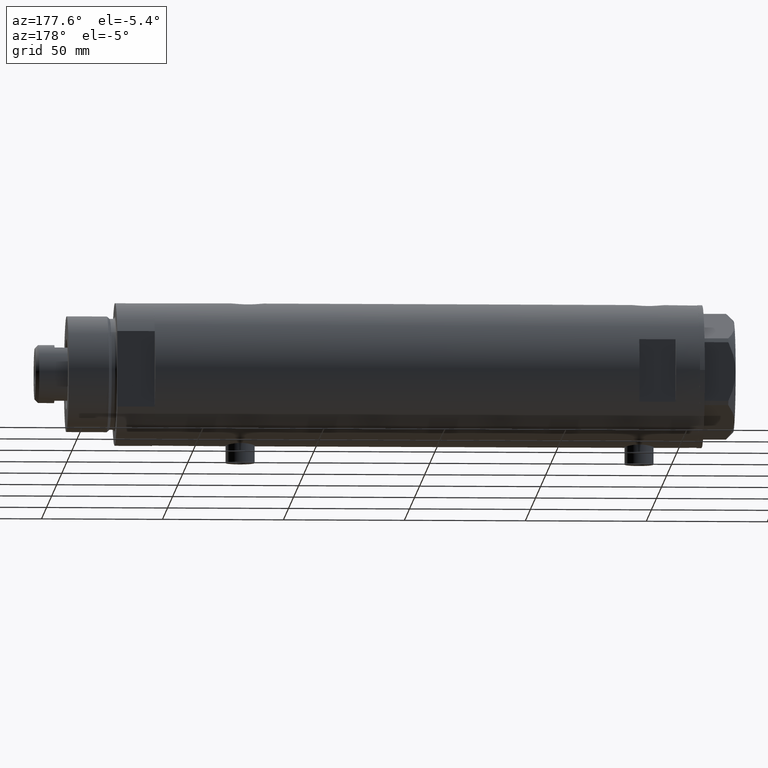
[diagram: clean part render]
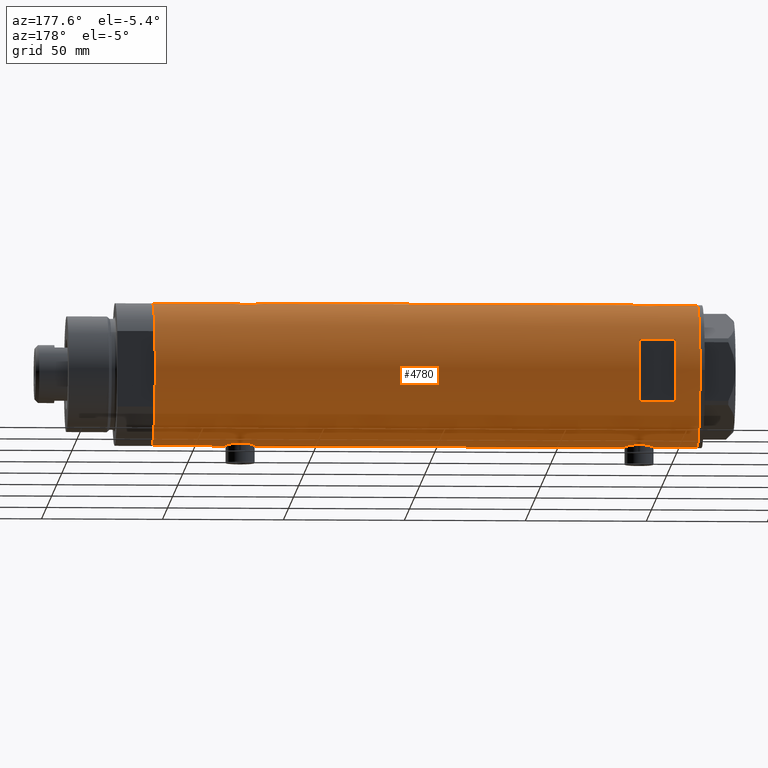
[diagram: same view with one face highlighted and labeled with its STEP entity id]
A machine part, auxiliary view. The second image highlights one B-rep face of the part: STEP entity #4780.
In plain terms, the highlighted cylindrical surface (partial cylindrical patch) has radius 29.5 mm, axis along (-1, -0, 0).
Its self-contained STEP definition (entity closure, byte-faithful):
#15 = CARTESIAN_POINT ( 'NONE',  ( 28.62953349941190595, 7.116010646391501382, 94.51979460923098486 ) ) ;
#36 = CARTESIAN_POINT ( 'NONE',  ( 28.58083212642745607, 7.306745240314161727, -75.10953669436209168 ) ) ;
#40 = CARTESIAN_POINT ( 'NONE',  ( 29.50000000000000355, -2.245054425791785664E-15, 84.59999999999998010 ) ) ;
#61 = CARTESIAN_POINT ( 'NONE',  ( 29.26131531204080360, 3.767377415172557864, -66.89654697428868246 ) ) ;
#63 = CARTESIAN_POINT ( 'NONE',  ( 28.80468126786725236, 6.368639251981151439, 96.06860510682072629 ) ) ;
#84 = CARTESIAN_POINT ( 'NONE',  ( 29.31521205951408504, 3.327945423969218108, 98.83906509227089998 ) ) ;
#108 = CARTESIAN_POINT ( 'NONE',  ( -29.50000000000000711, 0.2042768310961498301, -82.55000000000001137 ) ) ;
#137 = CARTESIAN_POINT ( 'NONE',  ( -29.46640581083894617, 1.421634556901802515, -70.21041108910578998 ) ) ;
#161 = CARTESIAN_POINT ( 'NONE',  ( -28.87327190949137901, 6.049038945481233220, -77.92451728205175243 ) ) ;
#183 = CARTESIAN_POINT ( 'NONE',  ( -29.48289442777306490, 1.024392307325220353, -82.46888222528697554 ) ) ;
#224 = VERTEX_POINT ( 'NONE', #2992 ) ;
#249 = VERTEX_POINT ( 'NONE', #983 ) ;
#252 = DIRECTION ( 'NONE',  ( 1.000000000000000000, 0.000000000000000000, 0.000000000000000000 ) ) ;
#257 = CARTESIAN_POINT ( 'NONE',  ( -29.43341305963176069, 2.016871341298213771, 82.67025331001194388 ) ) ;
#272 = VERTEX_POINT ( 'NONE', #1530 ) ;
#279 = EDGE_CURVE ( 'NONE', #4527, #904, #2363, .T. ) ;
#288 = CARTESIAN_POINT ( 'NONE',  ( -29.25454443288369077, 3.812919888526638879, 93.56897379180907137 ) ) ;
#295 = LINE ( 'NONE', #686, #2123 ) ;
#315 = CARTESIAN_POINT ( 'NONE',  ( -28.99931529802531571, 5.412890550536858747, 85.46870800944782331 ) ) ;
#337 = CARTESIAN_POINT ( 'NONE',  ( 29.50000000000000355, -8.867907290838723877E-21, -65.89999999999999147 ) ) ;
#375 = VERTEX_POINT ( 'NONE', #1835 ) ;
#385 = CARTESIAN_POINT ( 'NONE',  ( 29.08204711695422162, 4.951923910293533737, 86.46183978405699122 ) ) ;
#426 = CARTESIAN_POINT ( 'NONE',  ( 29.08204711695422162, 4.951923910293533737, -79.03816021594298036 ) ) ;
#429 = CARTESIAN_POINT ( 'NONE',  ( 28.53073993742370362, 7.499791908386164607, 91.60538051566963702 ) ) ;
#455 = CARTESIAN_POINT ( 'NONE',  ( 29.47533087885488712, 1.230190383163952461, 99.50252131767059893 ) ) ;
#461 = LINE ( 'NONE', #823, #803 ) ;
#475 = CARTESIAN_POINT ( 'NONE',  ( -29.21113960567727119, 4.128622307952520387, -81.01014533383550997 ) ) ;
#480 = EDGE_CURVE ( 'NONE', #2321, #1320, #461, .T. ) ;
#500 = CARTESIAN_POINT ( 'NONE',  ( -29.45614208737134021, 1.620034288692375757, -70.26011356088388027 ) ) ;
#529 = CARTESIAN_POINT ( 'NONE',  ( -29.37156641804198642, 2.775801885207113795, -70.68527430293366365 ) ) ;
#551 = CARTESIAN_POINT ( 'NONE',  ( -29.37021410611212957, 2.770135525807589261, -81.90634069022829067 ) ) ;
#573 = VECTOR ( 'NONE', #3574, 1000.000000000000000 ) ;
#624 = CARTESIAN_POINT ( 'NONE',  ( -29.45614208737133310, 1.620034288692375535, 94.63988643911606857 ) ) ;
#636 = ORIENTED_EDGE ( 'NONE', *, *, #1365, .F. ) ;
#650 = CARTESIAN_POINT ( 'NONE',  ( -29.21113960567727119, 4.128622307952519499, 83.88985466616443887 ) ) ;
#669 = LINE ( 'NONE', #1711, #3743 ) ;
#686 = CARTESIAN_POINT ( 'NONE',  ( -29.50000000000000355, 3.612708057484692393E-15, -112.5999999999999943 ) ) ;
#700 = EDGE_CURVE ( 'NONE', #224, #272, #2826, .T. ) ;
#703 = CARTESIAN_POINT ( 'NONE',  ( -28.83925158138407596, 6.209208576703536764, 87.77801617131194689 ) ) ;
#713 = ORIENTED_EDGE ( 'NONE', *, *, #1749, .T. ) ;
#723 = CARTESIAN_POINT ( 'NONE',  ( 28.95590528945748687, 5.641861744747101781, -68.45235088071116536 ) ) ;
#732 = AXIS2_PLACEMENT_3D ( 'NONE', #1062, #2818, #2893 ) ;
#739 = AXIS2_PLACEMENT_3D ( 'NONE', #1516, #2978, #4457 ) ;
#743 = EDGE_CURVE ( 'NONE', #2832, #249, #295, .T. ) ;
#745 = CARTESIAN_POINT ( 'NONE',  ( 29.50000000000000355, 0.4977435627019816122, -80.90000000000001990 ) ) ;
#769 = CARTESIAN_POINT ( 'NONE',  ( 28.69800960089390074, 6.832546664705498429, -70.29724969708695426 ) ) ;
#772 = CARTESIAN_POINT ( 'NONE',  ( 28.77473834757382321, 6.507156404236272174, 88.33837315939702250 ) ) ;
#785 = ORIENTED_EDGE ( 'NONE', *, *, #700, .F. ) ;
#788 = CARTESIAN_POINT ( 'NONE',  ( 29.38138226830143651, 2.652609128011945927, -80.41954601959670867 ) ) ;
#790 = CARTESIAN_POINT ( 'NONE',  ( 29.26187100173484623, 3.763222966830672256, 85.59401741939379349 ) ) ;
#799 = ORIENTED_EDGE ( 'NONE', *, *, #2082, .F. ) ;
#800 = DIRECTION ( 'NONE',  ( 0.000000000000000000, 0.000000000000000000, 1.000000000000000000 ) ) ;
#803 = VECTOR ( 'NONE', #4163, 1000.000000000000000 ) ;
#811 = CARTESIAN_POINT ( 'NONE',  ( 29.17471722935868783, 4.373569479501283830, -79.49768842409015690 ) ) ;
#823 = CARTESIAN_POINT ( 'NONE',  ( 12.96148139681573319, 26.49999999999999645, -112.5999999999999943 ) ) ;
#844 = CARTESIAN_POINT ( 'NONE',  ( -28.96085629491409819, 5.616414220648533906, -73.52800360409990788 ) ) ;
#893 = VECTOR ( 'NONE', #800, 1000.000000000000000 ) ;
#904 = VERTEX_POINT ( 'NONE', #4484 ) ;
#915 = CARTESIAN_POINT ( 'NONE',  ( -29.07990598238133373, 4.966177878631055975, -72.48314968353490428 ) ) ;
#934 = CARTESIAN_POINT ( 'NONE',  ( -29.50000000000000355, 3.612708057484692393E-15, -112.5999999999999943 ) ) ;
#983 = CARTESIAN_POINT ( 'NONE',  ( -29.50000000000000355, 3.612706708236066082E-15, -82.54999999999999716 ) ) ;
#986 = CARTESIAN_POINT ( 'NONE',  ( 12.96148139681571898, 26.50000000000000355, 87.60000000000000853 ) ) ;
#989 = CARTESIAN_POINT ( 'NONE',  ( -28.96085629491408753, 5.616414220648533018, 91.37199639590005518 ) ) ;
#1015 = B_SPLINE_CURVE_WITH_KNOTS ( 'NONE', 3,
 ( #4103, #745, #3737, #3715, #1092, #2963, #788, #1108, #2196, #811, #2561, #426, #2989, #1131, #3650, #3307, #1892, #3374, #2602, #3348, #36, #1527, #4082, #2643, #1463, #4486, #4443, #769, #2220, #4400, #2261, #3286, #4468, #723, #1157, #2623, #1913, #61, #1549, #2579, #4790, #3010, #3693, #1176, #4125, #337 ),
 .UNSPECIFIED., .F., .F.,
 ( 4, 2, 2, 2, 2, 2, 2, 2, 2, 2, 2, 2, 2, 2, 2, 2, 2, 2, 2, 2, 2, 2, 4 ),
 ( 2.180446897674398484E-18, 0.001471587963626214742, 0.002207381945439317126, 0.002943175927252419943, 0.004414763890878623843, 0.005150557872691738370, 0.005886351854504852897, 0.007357939818131048991, 0.008829527781757242483, 0.009565321763570359612, 0.01030111574538347674, 0.01177270370900966763, 0.01324429167263586199, 0.01471587963626205808, 0.01545167361807515093, 0.01618746759988825071, 0.01692326158170134529, 0.01765905556351443986, 0.01913064352714060473, 0.02060223149076676613, 0.02207381945439293100, 0.02280961343620601170, 0.02354540741801909587 ),
 .UNSPECIFIED. ) ;
#1016 = CARTESIAN_POINT ( 'NONE',  ( -29.12318177724206691, 4.709191267490246524, 84.47028949758345107 ) ) ;
#1034 = CYLINDRICAL_SURFACE ( 'NONE', #1691, 29.50000000000000355 ) ;
#1038 = CARTESIAN_POINT ( 'NONE',  ( -29.50000000000000355, 3.612706708236066082E-15, 82.34999999999998010 ) ) ;
#1062 = CARTESIAN_POINT ( 'NONE',  ( 0.000000000000000000, 0.000000000000000000, 102.6000000000000085 ) ) ;
#1092 = CARTESIAN_POINT ( 'NONE',  ( 29.43668864566816268, 1.946133027943911076, -80.64730912701001841 ) ) ;
#1094 = CARTESIAN_POINT ( 'NONE',  ( 29.26131531204080360, 3.767377415172557864, 98.60345302571128911 ) ) ;
#1108 = CARTESIAN_POINT ( 'NONE',  ( 29.31463363472445849, 3.333180401682688476, -80.13656844683043801 ) ) ;
#1111 = CARTESIAN_POINT ( 'NONE',  ( 28.63233008736633778, 7.102474189478622968, 89.67814868761111313 ) ) ;
#1118 = ORIENTED_EDGE ( 'NONE', *, *, #3189, .F. ) ;
#1131 = CARTESIAN_POINT ( 'NONE',  ( 28.95615051861771860, 5.649234316505064690, -78.35715418746728744 ) ) ;
#1132 = CIRCLE ( 'NONE', #3752, 29.50000000000000355 ) ;
#1134 = CARTESIAN_POINT ( 'NONE',  ( 28.95615051861771860, 5.649234316505064690, 87.14284581253269835 ) ) ;
#1157 = CARTESIAN_POINT ( 'NONE',  ( 28.98787507734748914, 5.475789924529805397, -68.26910956623378013 ) ) ;
#1160 = CARTESIAN_POINT ( 'NONE',  ( 29.43668864566816268, 1.946133027943911076, 84.85269087298998159 ) ) ;
#1176 = CARTESIAN_POINT ( 'NONE',  ( 29.49693976195335665, 0.4910732786937767047, -65.91200905704373270 ) ) ;
#1178 = CARTESIAN_POINT ( 'NONE',  ( 28.89369475765812112, 5.952264974793434860, 96.66950516186247455 ) ) ;
#1256 = CARTESIAN_POINT ( 'NONE',  ( -29.33500454540941149, 3.134363790739238542, -70.87737865536321635 ) ) ;
#1258 = EDGE_CURVE ( 'NONE', #2895, #3053, #1406, .T. ) ;
#1260 = DIRECTION ( 'NONE',  ( 0.000000000000000000, 1.000000000000000000, -4.704334850106595203E-15 ) ) ;
#1280 = CARTESIAN_POINT ( 'NONE',  ( -29.41782704931130255, 2.208494778271264725, -70.44961702072824039 ) ) ;
#1307 = CARTESIAN_POINT ( 'NONE',  ( -28.94521404191310765, 5.694822755760260868, -78.88333046401341164 ) ) ;
#1320 = VERTEX_POINT ( 'NONE', #986 ) ;
#1346 = ORIENTED_EDGE ( 'NONE', *, *, #2216, .F. ) ;
#1365 = EDGE_CURVE ( 'NONE', #375, #2321, #2812, .T. ) ;
#1389 = CARTESIAN_POINT ( 'NONE',  ( -29.38727827406289705, 2.583363936682820494, 82.90521973871331340 ) ) ;
#1406 = LINE ( 'NONE', #2868, #3121 ) ;
#1412 = CARTESIAN_POINT ( 'NONE',  ( -28.87327190949138256, 6.049038945481234109, 86.97548271794826746 ) ) ;
#1461 = CARTESIAN_POINT ( 'NONE',  ( -29.07990598238133018, 4.966177878631055975, 92.41685031646508719 ) ) ;
#1463 = CARTESIAN_POINT ( 'NONE',  ( 28.54372006395177053, 7.450900983269902689, -72.41234264364082662 ) ) ;
#1465 = CARTESIAN_POINT ( 'NONE',  ( 28.77649569280672992, 6.494415104660927973, 95.85934988816624980 ) ) ;
#1486 = CARTESIAN_POINT ( 'NONE',  ( 29.45150476095192360, 1.707859807438206312, 84.79292881343934596 ) ) ;
#1504 = CARTESIAN_POINT ( 'NONE',  ( 28.53063088452981688, 7.500206755597528030, 92.58828856904804638 ) ) ;
#1516 = CARTESIAN_POINT ( 'NONE',  ( 0.000000000000000000, 0.000000000000000000, 112.5999999999999943 ) ) ;
#1519 = LINE ( 'NONE', #3340, #1531 ) ;
#1525 = CARTESIAN_POINT ( 'NONE',  ( -29.50000000000000355, -5.649958391113855330E-16, -70.04999999999998295 ) ) ;
#1527 = CARTESIAN_POINT ( 'NONE',  ( 28.54350045195476326, 7.451747857568912004, -74.38266002875501215 ) ) ;
#1530 = CARTESIAN_POINT ( 'NONE',  ( 29.50000000000000355, -2.245054425791785664E-15, -80.90000000000000568 ) ) ;
#1531 = VECTOR ( 'NONE', #3730, 1000.000000000000000 ) ;
#1543 = EDGE_LOOP ( 'NONE', ( #4574, #2576, #1346, #713, #3369, #3387, #3683, #3948, #2975, #799, #3579, #785 ) ) ;
#1549 = CARTESIAN_POINT ( 'NONE',  ( 29.31521205951408504, 3.327945423969218108, -66.66093490772910002 ) ) ;
#1551 = CARTESIAN_POINT ( 'NONE',  ( 29.50000000000000355, 0.4977435627019816122, 84.59999999999999432 ) ) ;
#1571 = CARTESIAN_POINT ( 'NONE',  ( 29.43913092143246146, 1.954882548385547203, 99.35749234733353319 ) ) ;
#1619 = CARTESIAN_POINT ( 'NONE',  ( 0.000000000000000000, 0.000000000000000000, -112.5999999999999943 ) ) ;
#1622 = CARTESIAN_POINT ( 'NONE',  ( -29.25454443288369433, 3.812919888526639323, -71.33102620819090589 ) ) ;
#1645 = CARTESIAN_POINT ( 'NONE',  ( -28.83035796536222506, 6.249836767212676669, -75.88856505377279404 ) ) ;
#1655 = CARTESIAN_POINT ( 'NONE',  ( 29.50000000000000355, 0.000000000000000000, -112.5999999999999943 ) ) ;
#1667 = CARTESIAN_POINT ( 'NONE',  ( -29.48933702067640539, 0.8192029158410167877, -82.49950722266696346 ) ) ;
#1691 = AXIS2_PLACEMENT_3D ( 'NONE', #4323, #3156, #252 ) ;
#1711 = CARTESIAN_POINT ( 'NONE',  ( -29.50000000000000355, 3.612708057484692393E-15, -112.5999999999999943 ) ) ;
#1718 = CARTESIAN_POINT ( 'NONE',  ( -29.50000000000000355, -5.649958391113855330E-16, 94.84999999999999432 ) ) ;
#1749 = EDGE_CURVE ( 'NONE', #2609, #2768, #669, .T. ) ;
#1775 = CARTESIAN_POINT ( 'NONE',  ( -29.01875661852155019, 5.308007315944001547, 85.29411629999104605 ) ) ;
#1781 = DIRECTION ( 'NONE',  ( 0.000000000000000000, 0.000000000000000000, 1.000000000000000000 ) ) ;
#1830 = CARTESIAN_POINT ( 'NONE',  ( 28.98787507734748914, 5.475789924529805397, 97.23089043376624829 ) ) ;
#1831 = CARTESIAN_POINT ( 'NONE',  ( -29.50000000000000355, 3.612708057484692393E-15, 112.5999999999999943 ) ) ;
#1835 = CARTESIAN_POINT ( 'NONE',  ( -12.96148139681573319, 26.49999999999998934, 102.6000000000000085 ) ) ;
#1872 = CARTESIAN_POINT ( 'NONE',  ( 29.17471722935868783, 4.373569479501283830, 86.00231157590984310 ) ) ;
#1892 = CARTESIAN_POINT ( 'NONE',  ( 28.72066933684368095, 6.738715173607861431, -76.72836955953555105 ) ) ;
#1895 = CARTESIAN_POINT ( 'NONE',  ( 12.96148139681573319, 26.49999999999998934, 102.6000000000000085 ) ) ;
#1910 = AXIS2_PLACEMENT_3D ( 'NONE', #1619, #3056, #3490 ) ;
#1913 = CARTESIAN_POINT ( 'NONE',  ( 29.14546206473281487, 4.578181670952607085, -67.43943908396705922 ) ) ;
#1917 = CARTESIAN_POINT ( 'NONE',  ( 29.05056090758568388, 5.132790299589563787, 86.62608273347915144 ) ) ;
#1939 = CARTESIAN_POINT ( 'NONE',  ( 29.40387556522357571, 2.422597899785628339, 99.21486039769831677 ) ) ;
#1958 = CARTESIAN_POINT ( 'NONE',  ( -28.99931529802531216, 5.412890550536858747, -79.43129199055219658 ) ) ;
#1971 = EDGE_CURVE ( 'NONE', #4788, #3053, #4216, .T. ) ;
#2009 = CARTESIAN_POINT ( 'NONE',  ( -28.90008889585329044, 5.919338933253946777, -74.28359792941951412 ) ) ;
#2031 = CARTESIAN_POINT ( 'NONE',  ( -28.83925158138407596, 6.209208576703537652, -77.12198382868805879 ) ) ;
#2049 = CARTESIAN_POINT ( 'NONE',  ( -29.50000000000000355, 3.612706708236066082E-15, -82.54999999999999716 ) ) ;
#2082 = EDGE_CURVE ( 'NONE', #3920, #4527, #3386, .T. ) ;
#2098 = CARTESIAN_POINT ( 'NONE',  ( -28.83035796536221440, 6.249836767212674005, 89.01143494622721164 ) ) ;
#2103 = B_SPLINE_CURVE_WITH_KNOTS ( 'NONE', 3,
 ( #1718, #3181, #4658, #4180, #624, #4298, #4327, #2852, #4738, #288, #2128, #2819, #1461, #4032, #989, #3598, #3568, #4764, #2460, #3935, #2098, #3211, #703, #1412, #4399, #3628, #2873, #315, #1775, #3959, #1016, #650, #2537, #4690, #3241, #2924, #1389, #257, #2194, #2483, #4717, #4374, #4348, #1038 ),
 .UNSPECIFIED., .F., .F.,
 ( 4, 2, 2, 2, 2, 2, 2, 2, 2, 2, 2, 2, 2, 2, 2, 2, 2, 2, 2, 2, 2, 4 ),
 ( 5.488367186017542912E-19, 0.001224749128302359208, 0.001837123692453538487, 0.002449498256604717549, 0.003674247384907060928, 0.004898996513209404741, 0.006123745641511747252, 0.007348494769814091498, 0.007960869333965264055, 0.008573243898116434877, 0.009797993026418740092, 0.01102274215472104531, 0.01224749128302334705, 0.01285986584717448145, 0.01347224041132561584, 0.01469698953962791585, 0.01592173866793021586, 0.01653411323208136413, 0.01714648779623251240, 0.01837123692453481241, 0.01898361148868596762, 0.01959598605283711936 ),
 .UNSPECIFIED. ) ;
#2123 = VECTOR ( 'NONE', #1781, 1000.000000000000000 ) ;
#2128 = CARTESIAN_POINT ( 'NONE',  ( -29.21045586191521082, 4.133246019522336390, 93.30573901566481254 ) ) ;
#2139 = CIRCLE ( 'NONE', #1910, 29.50000000000000355 ) ;
#2194 = CARTESIAN_POINT ( 'NONE',  ( -29.45783481716065211, 1.627188261681546511, 82.55163589091053211 ) ) ;
#2196 = CARTESIAN_POINT ( 'NONE',  ( 29.26187100173484623, 3.763222966830672256, -79.90598258060620651 ) ) ;
#2199 = CARTESIAN_POINT ( 'NONE',  ( 29.48742029994219749, 0.9867701249543477937, 84.64905492505776863 ) ) ;
#2216 = EDGE_CURVE ( 'NONE', #2609, #249, #2617, .T. ) ;
#2220 = CARTESIAN_POINT ( 'NONE',  ( 28.72322018454530479, 6.726124749058844721, -70.07293147149003687 ) ) ;
#2224 = CARTESIAN_POINT ( 'NONE',  ( 28.59637095282950980, 7.245897747848937698, 90.14872625722388477 ) ) ;
#2245 = CARTESIAN_POINT ( 'NONE',  ( 28.54372006395177053, 7.450900983269902689, 93.08765735635915917 ) ) ;
#2261 = CARTESIAN_POINT ( 'NONE',  ( 28.80468126786725236, 6.368639251981151439, -69.43139489317928792 ) ) ;
#2263 = CARTESIAN_POINT ( 'NONE',  ( 29.14416130131008131, 4.572185141625607407, 86.14974588234440489 ) ) ;
#2289 = VECTOR ( 'NONE', #4355, 1000.000000000000000 ) ;
#2291 = CARTESIAN_POINT ( 'NONE',  ( 28.54350045195476326, 7.451747857568912004, 91.11733997124495943 ) ) ;
#2321 = VERTEX_POINT ( 'NONE', #1895 ) ;
#2362 = CARTESIAN_POINT ( 'NONE',  ( -29.25435602127559065, 3.814249285079244434, -81.26783729533993039 ) ) ;
#2363 = B_SPLINE_CURVE_WITH_KNOTS ( 'NONE', 3,
 ( #40, #1551, #2199, #1486, #1160, #2626, #2945, #4105, #790, #1872, #2263, #385, #1917, #1134, #3328, #772, #2582, #4420, #1111, #2224, #3740, #2291, #429, #1504, #2245, #4489, #15, #4446, #3376, #1465, #63, #3013, #1178, #2645, #1830, #3288, #4402, #1094, #84, #1939, #1571, #455, #3396, #3766, #4310, #3970 ),
 .UNSPECIFIED., .F., .F.,
 ( 4, 2, 2, 2, 2, 2, 2, 2, 2, 2, 2, 2, 2, 2, 2, 2, 2, 2, 2, 2, 2, 2, 4 ),
 ( 2.180446897674398484E-18, 0.001471587963626214742, 0.002207381945439317126, 0.002943175927252419943, 0.004414763890878623843, 0.005150557872691738370, 0.005886351854504852897, 0.007357939818131048991, 0.008829527781757242483, 0.009565321763570359612, 0.01030111574538347674, 0.01177270370900966763, 0.01324429167263586199, 0.01471587963626205808, 0.01545167361807515093, 0.01618746759988825071, 0.01692326158170134529, 0.01765905556351443986, 0.01913064352714060473, 0.02060223149076676613, 0.02207381945439293100, 0.02280961343620601170, 0.02354540741801909587 ),
 .UNSPECIFIED. ) ;
#2365 = DIRECTION ( 'NONE',  ( 0.000000000000000000, 4.625929269271487689E-15, 1.000000000000000000 ) ) ;
#2388 = CARTESIAN_POINT ( 'NONE',  ( -29.07940225710134285, 4.969011347753393260, -80.11269734470184289 ) ) ;
#2397 = CARTESIAN_POINT ( 'NONE',  ( 29.50000000000000355, -8.867907290838723877E-21, -65.89999999999999147 ) ) ;
#2407 = FACE_BOUND ( 'NONE', #3456, .T. ) ;
#2427 = CARTESIAN_POINT ( 'NONE',  ( -29.50000000000000355, -5.649958391113855330E-16, 94.84999999999999432 ) ) ;
#2460 = CARTESIAN_POINT ( 'NONE',  ( -28.86473101544358144, 6.089252369705490331, 90.02332949166030573 ) ) ;
#2483 = CARTESIAN_POINT ( 'NONE',  ( -29.48289442777306846, 1.024392307325220797, 82.43111777471298751 ) ) ;
#2502 = DIRECTION ( 'NONE',  ( 0.000000000000000000, 0.000000000000000000, 1.000000000000000000 ) ) ;
#2506 = ORIENTED_EDGE ( 'NONE', *, *, #480, .F. ) ;
#2537 = CARTESIAN_POINT ( 'NONE',  ( -29.25435602127558354, 3.814249285079243101, 83.63216270466004687 ) ) ;
#2557 = EDGE_CURVE ( 'NONE', #2895, #2768, #2103, .T. ) ;
#2561 = CARTESIAN_POINT ( 'NONE',  ( 29.14416130131008131, 4.572185141625607407, -79.35025411765556669 ) ) ;
#2576 = ORIENTED_EDGE ( 'NONE', *, *, #743, .T. ) ;
#2579 = CARTESIAN_POINT ( 'NONE',  ( 29.40387556522357571, 2.422597899785628339, -66.28513960230164059 ) ) ;
#2582 = CARTESIAN_POINT ( 'NONE',  ( 28.72066933684368095, 6.738715173607861431, 88.77163044046442053 ) ) ;
#2602 = CARTESIAN_POINT ( 'NONE',  ( 28.63233008736633778, 7.102474189478622968, -75.82185131238890108 ) ) ;
#2609 = VERTEX_POINT ( 'NONE', #1525 ) ;
#2617 = B_SPLINE_CURVE_WITH_KNOTS ( 'NONE', 3,
 ( #3472, #4227, #3447, #137, #500, #3838, #1280, #529, #1256, #1622, #3883, #3789, #915, #3087, #844, #4634, #2009, #2716, #4562, #4178, #1645, #2773, #2031, #161, #2670, #1307, #4200, #1958, #3107, #2388, #3862, #475, #2362, #4156, #4584, #551, #3418, #3517, #3495, #183, #1667, #3134, #108, #2049 ),
 .UNSPECIFIED., .F., .F.,
 ( 4, 2, 2, 2, 2, 2, 2, 2, 2, 2, 2, 2, 2, 2, 2, 2, 2, 2, 2, 2, 2, 4 ),
 ( 5.488367186017542912E-19, 0.001224749128302296758, 0.001837123692453444595, 0.002449498256604592649, 0.003674247384906904803, 0.004898996513209217391, 0.006123745641511529544, 0.007348494769813842566, 0.007960869333964998643, 0.008573243898116155587, 0.009797993026418507639, 0.01102274215472085969, 0.01224749128302321348, 0.01285986584717438777, 0.01347224041132556553, 0.01469698953962788462, 0.01592173866793020545, 0.01653411323208136413, 0.01714648779623252281, 0.01837123692453482629, 0.01898361148868597109, 0.01959598605283711936 ),
 .UNSPECIFIED. ) ;
#2623 = CARTESIAN_POINT ( 'NONE',  ( 29.08308069045667565, 4.954707331652133284, -67.74826371623228738 ) ) ;
#2626 = CARTESIAN_POINT ( 'NONE',  ( 29.40165444879503909, 2.418426732012825653, 84.99632943565210041 ) ) ;
#2643 = CARTESIAN_POINT ( 'NONE',  ( 28.53063088452981688, 7.500206755597528030, -72.91171143095191098 ) ) ;
#2645 = CARTESIAN_POINT ( 'NONE',  ( 28.95590528945748687, 5.641861744747101781, 97.04764911928884885 ) ) ;
#2670 = CARTESIAN_POINT ( 'NONE',  ( -28.89816269917384872, 5.930588606439751942, -78.31470315542169658 ) ) ;
#2716 = CARTESIAN_POINT ( 'NONE',  ( -28.87539346372185634, 6.038655803256916421, -74.67547335916927409 ) ) ;
#2768 = VERTEX_POINT ( 'NONE', #3469 ) ;
#2773 = CARTESIAN_POINT ( 'NONE',  ( -28.83028740688047264, 6.250162243045982891, -76.70646065908368882 ) ) ;
#2785 = EDGE_CURVE ( 'NONE', #224, #2832, #2139, .T. ) ;
#2812 = CIRCLE ( 'NONE', #732, 29.50000000000000355 ) ;
#2818 = DIRECTION ( 'NONE',  ( -0.000000000000000000, -0.000000000000000000, -1.000000000000000000 ) ) ;
#2819 = CARTESIAN_POINT ( 'NONE',  ( -29.12335997091253148, 4.707903814166463086, 92.73078007378799725 ) ) ;
#2826 = LINE ( 'NONE', #4079, #573 ) ;
#2832 = VERTEX_POINT ( 'NONE', #934 ) ;
#2852 = CARTESIAN_POINT ( 'NONE',  ( -29.37156641804199353, 2.775801885207114239, 94.21472569706631361 ) ) ;
#2868 = CARTESIAN_POINT ( 'NONE',  ( -29.50000000000000355, 3.612708057484692393E-15, -112.5999999999999943 ) ) ;
#2873 = CARTESIAN_POINT ( 'NONE',  ( -28.96258065965880846, 5.606121065329690012, 85.82948014931236003 ) ) ;
#2881 = CARTESIAN_POINT ( 'NONE',  ( 29.50000000000000355, 0.000000000000000000, -112.5999999999999943 ) ) ;
#2893 = DIRECTION ( 'NONE',  ( 1.000000000000000000, -1.776356839400250267E-15, 0.000000000000000000 ) ) ;
#2895 = VERTEX_POINT ( 'NONE', #2427 ) ;
#2924 = CARTESIAN_POINT ( 'NONE',  ( -29.37021410611213668, 2.770135525807589261, 82.99365930977168659 ) ) ;
#2945 = CARTESIAN_POINT ( 'NONE',  ( 29.38138226830143651, 2.652609128011945927, 85.08045398040326290 ) ) ;
#2963 = CARTESIAN_POINT ( 'NONE',  ( 29.40165444879503909, 2.418426732012825653, -80.50367056434788537 ) ) ;
#2975 = ORIENTED_EDGE ( 'NONE', *, *, #279, .F. ) ;
#2978 = DIRECTION ( 'NONE',  ( 0.000000000000000000, 0.000000000000000000, 1.000000000000000000 ) ) ;
#2989 = CARTESIAN_POINT ( 'NONE',  ( 29.05056090758568388, 5.132790299589563787, -78.87391726652083435 ) ) ;
#2992 = CARTESIAN_POINT ( 'NONE',  ( 29.50000000000000355, 0.000000000000000000, -112.5999999999999943 ) ) ;
#3010 = CARTESIAN_POINT ( 'NONE',  ( 29.47533087885488712, 1.230190383163952461, -65.99747868232940107 ) ) ;
#3013 = CARTESIAN_POINT ( 'NONE',  ( 28.86328010881651807, 6.097564286278117862, 96.47368290922692324 ) ) ;
#3053 = VERTEX_POINT ( 'NONE', #1831 ) ;
#3056 = DIRECTION ( 'NONE',  ( 0.000000000000000000, 0.000000000000000000, 1.000000000000000000 ) ) ;
#3087 = CARTESIAN_POINT ( 'NONE',  ( -28.99817753551064925, 5.423057650933435170, -73.16603848537405952 ) ) ;
#3107 = CARTESIAN_POINT ( 'NONE',  ( -29.01875661852156085, 5.308007315944005100, -79.60588370000893121 ) ) ;
#3108 = EDGE_CURVE ( 'NONE', #904, #4788, #4038, .T. ) ;
#3121 = VECTOR ( 'NONE', #2502, 1000.000000000000000 ) ;
#3134 = CARTESIAN_POINT ( 'NONE',  ( -29.49787850362430675, 0.4089683628077636635, -82.54001026437013877 ) ) ;
#3156 = DIRECTION ( 'NONE',  ( 0.000000000000000000, 0.000000000000000000, 1.000000000000000000 ) ) ;
#3181 = CARTESIAN_POINT ( 'NONE',  ( -29.50000000000000711, 0.4142160563134686946, 94.85000000000000853 ) ) ;
#3189 = EDGE_CURVE ( 'NONE', #1320, #3282, #1132, .T. ) ;
#3211 = CARTESIAN_POINT ( 'NONE',  ( -28.83028740688046554, 6.250162243045982891, 88.19353934091623159 ) ) ;
#3241 = CARTESIAN_POINT ( 'NONE',  ( -29.33379699751450076, 3.132328395749502725, 83.18767835513884279 ) ) ;
#3282 = VERTEX_POINT ( 'NONE', #3629 ) ;
#3286 = CARTESIAN_POINT ( 'NONE',  ( 28.86328010881651807, 6.097564286278117862, -69.02631709077299149 ) ) ;
#3288 = CARTESIAN_POINT ( 'NONE',  ( 29.08308069045667565, 4.954707331652133284, 97.75173628376772683 ) ) ;
#3307 = CARTESIAN_POINT ( 'NONE',  ( 28.77473834757382321, 6.507156404236272174, -77.16162684060296328 ) ) ;
#3328 = CARTESIAN_POINT ( 'NONE',  ( 28.89325003604223951, 5.958922200807248437, 87.51915213504483404 ) ) ;
#3340 = CARTESIAN_POINT ( 'NONE',  ( -12.96148139681573319, 26.49999999999999645, -112.5999999999999943 ) ) ;
#3348 = CARTESIAN_POINT ( 'NONE',  ( 28.59637095282950980, 7.245897747848937698, -75.35127374277611523 ) ) ;
#3369 = ORIENTED_EDGE ( 'NONE', *, *, #2557, .F. ) ;
#3374 = CARTESIAN_POINT ( 'NONE',  ( 28.65280969280607337, 7.019670864411701849, -76.05213168683113167 ) ) ;
#3376 = CARTESIAN_POINT ( 'NONE',  ( 28.72322018454530479, 6.726124749058844721, 95.42706852851001997 ) ) ;
#3386 = LINE ( 'NONE', #1655, #893 ) ;
#3387 = ORIENTED_EDGE ( 'NONE', *, *, #1258, .T. ) ;
#3396 = CARTESIAN_POINT ( 'NONE',  ( 29.48463566286631377, 0.9832945201638373378, 99.53937451762296007 ) ) ;
#3418 = CARTESIAN_POINT ( 'NONE',  ( -29.38727827406289705, 2.583363936682820494, -81.99478026128664965 ) ) ;
#3447 = CARTESIAN_POINT ( 'NONE',  ( -29.49128627113591605, 0.8212788586050359108, -70.09076875091126624 ) ) ;
#3456 = EDGE_LOOP ( 'NONE', ( #4309, #1118, #2506, #636 ) ) ;
#3462 = EDGE_CURVE ( 'NONE', #3282, #375, #1519, .T. ) ;
#3469 = CARTESIAN_POINT ( 'NONE',  ( -29.50000000000000355, 3.612706708236066082E-15, 82.34999999999998010 ) ) ;
#3472 = CARTESIAN_POINT ( 'NONE',  ( -29.50000000000000355, -5.649958391113855330E-16, -70.04999999999998295 ) ) ;
#3490 = DIRECTION ( 'NONE',  ( 1.000000000000000000, 0.000000000000000000, 0.000000000000000000 ) ) ;
#3495 = CARTESIAN_POINT ( 'NONE',  ( -29.45783481716065921, 1.627188261681547399, -82.34836410908947357 ) ) ;
#3517 = CARTESIAN_POINT ( 'NONE',  ( -29.43341305963176424, 2.016871341298210663, -82.22974668998807601 ) ) ;
#3568 = CARTESIAN_POINT ( 'NONE',  ( -28.90008889585329399, 5.919338933253945889, 90.61640207058046315 ) ) ;
#3574 = DIRECTION ( 'NONE',  ( 0.000000000000000000, 0.000000000000000000, 1.000000000000000000 ) ) ;
#3579 = ORIENTED_EDGE ( 'NONE', *, *, #4521, .F. ) ;
#3598 = CARTESIAN_POINT ( 'NONE',  ( -28.91416466586725065, 5.850419487802252405, 90.80827647633628885 ) ) ;
#3628 = CARTESIAN_POINT ( 'NONE',  ( -28.94521404191312541, 5.694822755760260868, 86.01666953598655141 ) ) ;
#3629 = CARTESIAN_POINT ( 'NONE',  ( -12.96148139681574030, 26.50000000000000355, 87.60000000000000853 ) ) ;
#3650 = CARTESIAN_POINT ( 'NONE',  ( 28.89325003604223951, 5.958922200807248437, -77.98084786495516596 ) ) ;
#3683 = ORIENTED_EDGE ( 'NONE', *, *, #1971, .F. ) ;
#3693 = CARTESIAN_POINT ( 'NONE',  ( 29.48463566286631377, 0.9832945201638373378, -65.96062548237703993 ) ) ;
#3715 = CARTESIAN_POINT ( 'NONE',  ( 29.45150476095192360, 1.707859807438206312, -80.70707118656062562 ) ) ;
#3730 = DIRECTION ( 'NONE',  ( 0.000000000000000000, 0.000000000000000000, 1.000000000000000000 ) ) ;
#3737 = CARTESIAN_POINT ( 'NONE',  ( 29.48742029994219749, 0.9867701249543477937, -80.85094507494221716 ) ) ;
#3740 = CARTESIAN_POINT ( 'NONE',  ( 28.58083212642745607, 7.306745240314161727, 90.39046330563792253 ) ) ;
#3743 = VECTOR ( 'NONE', #3927, 1000.000000000000000 ) ;
#3752 = AXIS2_PLACEMENT_3D ( 'NONE', #4542, #2365, #1260 ) ;
#3766 = CARTESIAN_POINT ( 'NONE',  ( 29.49693976195335665, 0.4910732786937767047, 99.58799094295619625 ) ) ;
#3789 = CARTESIAN_POINT ( 'NONE',  ( -29.12335997091253503, 4.707903814166464862, -72.16921992621200843 ) ) ;
#3838 = CARTESIAN_POINT ( 'NONE',  ( -29.43187585711095977, 2.013330896687708815, -70.37959139970894284 ) ) ;
#3862 = CARTESIAN_POINT ( 'NONE',  ( -29.12318177724206336, 4.709191267490246524, -80.42971050241654041 ) ) ;
#3883 = CARTESIAN_POINT ( 'NONE',  ( -29.21045586191521082, 4.133246019522336390, -71.59426098433517893 ) ) ;
#3920 = VERTEX_POINT ( 'NONE', #2397 ) ;
#3927 = DIRECTION ( 'NONE',  ( 0.000000000000000000, 0.000000000000000000, 1.000000000000000000 ) ) ;
#3935 = CARTESIAN_POINT ( 'NONE',  ( -28.83909818927743629, 6.209925900742494065, 89.41778075451991015 ) ) ;
#3948 = ORIENTED_EDGE ( 'NONE', *, *, #3108, .F. ) ;
#3956 = FACE_OUTER_BOUND ( 'NONE', #1543, .T. ) ;
#3959 = CARTESIAN_POINT ( 'NONE',  ( -29.07940225710134285, 4.969011347753391483, 84.78730265529817700 ) ) ;
#3970 = CARTESIAN_POINT ( 'NONE',  ( 29.50000000000000355, -8.867907290838723877E-21, 99.59999999999999432 ) ) ;
#4032 = CARTESIAN_POINT ( 'NONE',  ( -28.99817753551064570, 5.423057650933436058, 91.73396151462590353 ) ) ;
#4033 = CARTESIAN_POINT ( 'NONE',  ( 29.50000000000000355, -2.245054425791785664E-15, 84.59999999999998010 ) ) ;
#4038 = LINE ( 'NONE', #2881, #2289 ) ;
#4079 = CARTESIAN_POINT ( 'NONE',  ( 29.50000000000000355, 0.000000000000000000, -112.5999999999999943 ) ) ;
#4082 = CARTESIAN_POINT ( 'NONE',  ( 28.53073993742370362, 7.499791908386164607, -73.89461948433039140 ) ) ;
#4103 = CARTESIAN_POINT ( 'NONE',  ( 29.50000000000000355, -2.245054425791785664E-15, -80.90000000000000568 ) ) ;
#4105 = CARTESIAN_POINT ( 'NONE',  ( 29.31463363472445849, 3.333180401682688476, 85.36343155316953357 ) ) ;
#4125 = CARTESIAN_POINT ( 'NONE',  ( 29.50000000000000355, 0.2453482418156857914, -65.89999999999999147 ) ) ;
#4156 = CARTESIAN_POINT ( 'NONE',  ( -29.31451746246149881, 3.307268797680005257, -81.60714841985003432 ) ) ;
#4163 = DIRECTION ( 'NONE',  ( -0.000000000000000000, -0.000000000000000000, -1.000000000000000000 ) ) ;
#4178 = CARTESIAN_POINT ( 'NONE',  ( -28.83909818927743984, 6.209925900742494065, -75.48221924548005290 ) ) ;
#4180 = CARTESIAN_POINT ( 'NONE',  ( -29.46640581083894261, 1.421634556901802293, 94.68958891089417307 ) ) ;
#4200 = CARTESIAN_POINT ( 'NONE',  ( -28.96258065965880846, 5.606121065329687347, -79.07051985068761724 ) ) ;
#4216 = CIRCLE ( 'NONE', #739, 29.50000000000000355 ) ;
#4227 = CARTESIAN_POINT ( 'NONE',  ( -29.50000000000001421, 0.4142160563134685836, -70.05000000000001137 ) ) ;
#4298 = CARTESIAN_POINT ( 'NONE',  ( -29.43187585711094556, 2.013330896687708815, 94.52040860029102021 ) ) ;
#4309 = ORIENTED_EDGE ( 'NONE', *, *, #3462, .F. ) ;
#4310 = CARTESIAN_POINT ( 'NONE',  ( 29.50000000000000355, 0.2453482418156857914, 99.59999999999998010 ) ) ;
#4323 = CARTESIAN_POINT ( 'NONE',  ( 0.000000000000000000, 0.000000000000000000, -112.5999999999999943 ) ) ;
#4327 = CARTESIAN_POINT ( 'NONE',  ( -29.41782704931129544, 2.208494778271264725, 94.45038297927172266 ) ) ;
#4348 = CARTESIAN_POINT ( 'NONE',  ( -29.50000000000000355, 0.2042768310961497746, 82.34999999999999432 ) ) ;
#4355 = DIRECTION ( 'NONE',  ( 0.000000000000000000, 0.000000000000000000, 1.000000000000000000 ) ) ;
#4374 = CARTESIAN_POINT ( 'NONE',  ( -29.49787850362429964, 0.4089683628077637745, 82.35998973562986691 ) ) ;
#4399 = CARTESIAN_POINT ( 'NONE',  ( -28.89816269917384872, 5.930588606439751054, 86.58529684457830911 ) ) ;
#4400 = CARTESIAN_POINT ( 'NONE',  ( 28.77649569280672992, 6.494415104660927973, -69.64065011183373599 ) ) ;
#4402 = CARTESIAN_POINT ( 'NONE',  ( 29.14546206473281487, 4.578181670952607085, 98.06056091603291236 ) ) ;
#4420 = CARTESIAN_POINT ( 'NONE',  ( 28.65280969280607337, 7.019670864411701849, 89.44786831316893938 ) ) ;
#4443 = CARTESIAN_POINT ( 'NONE',  ( 28.62953349941190595, 7.116010646391501382, -70.98020539076900093 ) ) ;
#4446 = CARTESIAN_POINT ( 'NONE',  ( 28.69800960089390074, 6.832546664705498429, 95.20275030291307417 ) ) ;
#4457 = DIRECTION ( 'NONE',  ( 1.000000000000000000, 0.000000000000000000, 0.000000000000000000 ) ) ;
#4468 = CARTESIAN_POINT ( 'NONE',  ( 28.89369475765812112, 5.952264974793434860, -68.83049483813751124 ) ) ;
#4484 = CARTESIAN_POINT ( 'NONE',  ( 29.50000000000000355, -8.867907290838723877E-21, 99.59999999999999432 ) ) ;
#4486 = CARTESIAN_POINT ( 'NONE',  ( 28.59328333056173221, 7.258376466535483296, -71.44875332515168509 ) ) ;
#4489 = CARTESIAN_POINT ( 'NONE',  ( 28.59328333056173221, 7.258376466535483296, 94.05124667484831491 ) ) ;
#4521 = EDGE_CURVE ( 'NONE', #272, #3920, #1015, .T. ) ;
#4527 = VERTEX_POINT ( 'NONE', #4033 ) ;
#4542 = CARTESIAN_POINT ( 'NONE',  ( 0.000000000000000000, 0.000000000000000000, 87.60000000000010800 ) ) ;
#4562 = CARTESIAN_POINT ( 'NONE',  ( -28.86473101544358499, 6.089252369705491219, -74.87667050833968574 ) ) ;
#4574 = ORIENTED_EDGE ( 'NONE', *, *, #2785, .T. ) ;
#4584 = CARTESIAN_POINT ( 'NONE',  ( -29.33379699751450786, 3.132328395749503169, -81.71232164486113447 ) ) ;
#4634 = CARTESIAN_POINT ( 'NONE',  ( -28.91416466586724709, 5.850419487802254181, -74.09172352366370262 ) ) ;
#4654 = CARTESIAN_POINT ( 'NONE',  ( 29.50000000000000355, 0.000000000000000000, 112.5999999999999943 ) ) ;
#4658 = CARTESIAN_POINT ( 'NONE',  ( -29.49128627113591250, 0.8212788586050364659, 94.80923124908871102 ) ) ;
#4690 = CARTESIAN_POINT ( 'NONE',  ( -29.31451746246149170, 3.307268797680003036, 83.29285158014991453 ) ) ;
#4717 = CARTESIAN_POINT ( 'NONE',  ( -29.48933702067640894, 0.8192029158410168987, 82.40049277733302802 ) ) ;
#4738 = CARTESIAN_POINT ( 'NONE',  ( -29.33500454540941149, 3.134363790739238542, 94.02262134463677512 ) ) ;
#4764 = CARTESIAN_POINT ( 'NONE',  ( -28.87539346372184923, 6.038655803256915533, 90.22452664083071738 ) ) ;
#4780 = ADVANCED_FACE ( 'NONE', ( #2407, #3956 ), #1034, .T. ) ;
#4788 = VERTEX_POINT ( 'NONE', #4654 ) ;
#4790 = CARTESIAN_POINT ( 'NONE',  ( 29.43913092143246146, 1.954882548385547203, -66.14250765266646681 ) ) ;